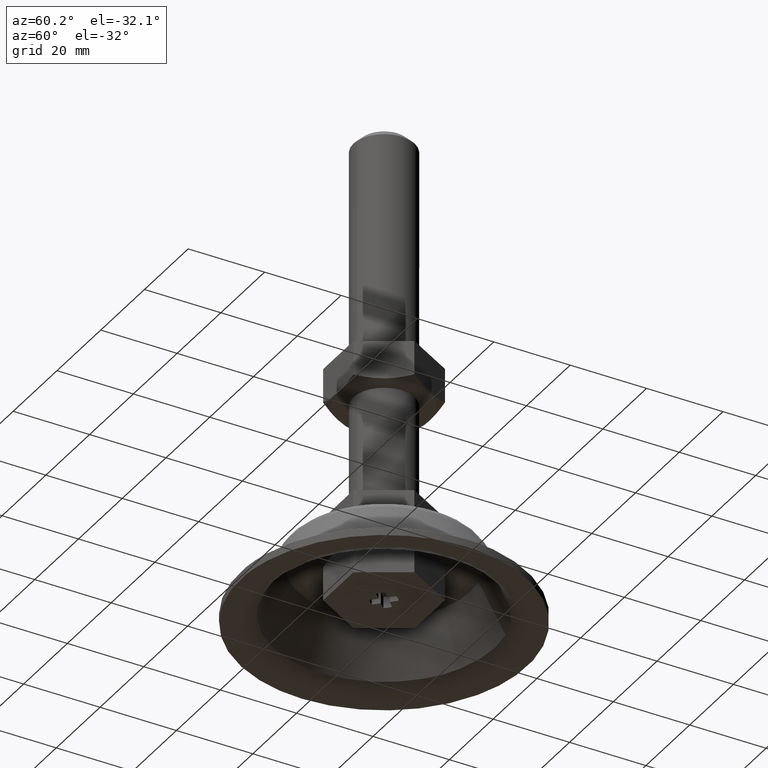
[diagram: clean part render]
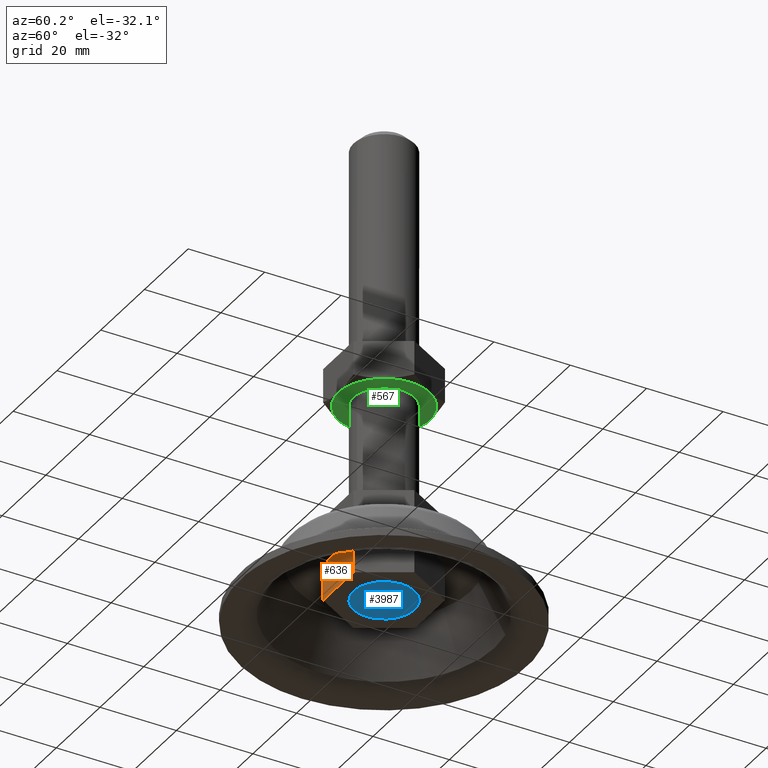
[diagram: same view with three faces highlighted in distinct colors, each labeled with its STEP entity id]
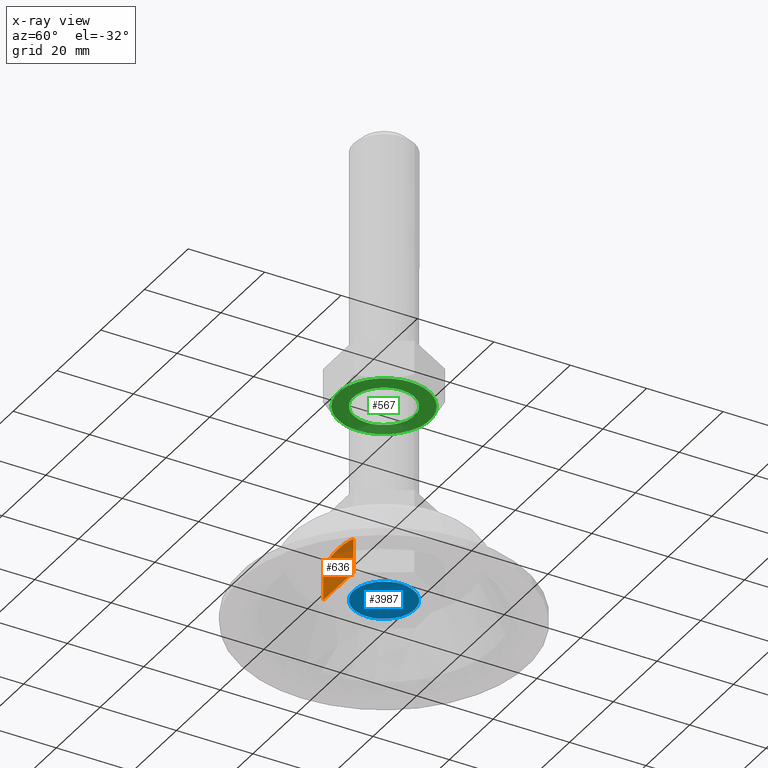
[diagram: x-ray of the same camera — body ghosted, the three highlighted faces saturated]
A machine part, auxiliary view with three faces highlighted in distinct colors.
The next image is the same camera in x-ray (body ghosted, the three faces saturated) — at least one of them is partly hidden behind the body in this view.
Their STEP definitions:

[orange] entity #636 — the highlighted face is a freeform B-spline surface patch.
#120=CARTESIAN_POINT('',(6.921797000000001,-12.0,59.073646796981500));
#121=VERTEX_POINT('',#120);
#141=CARTESIAN_POINT('',(-6.921797000000001,-12.0,59.073646796981500));
#142=VERTEX_POINT('',#141);
#143=CARTESIAN_POINT('',(6.921797000000001,-12.0,59.073646796981500));
#144=CARTESIAN_POINT('',(5.802870978181967,-12.0,58.750864757764639));
#145=CARTESIAN_POINT('',(4.669317161794063,-12.0,58.482083020122992));
#146=CARTESIAN_POINT('',(3.224847049230230,-12.0,58.247728260586769));
#147=CARTESIAN_POINT('',(2.789433234024623,-12.0,58.185073760166730));
#148=CARTESIAN_POINT('',(2.350644054811856,-12.0,58.134879830849343));
#149=CARTESIAN_POINT('',(2.057339841839632,-12.0,58.104289639085167));
#150=CARTESIAN_POINT('',(1.910142876343360,-12.0,58.090418470358287));
#151=CARTESIAN_POINT('',(1.174110774181515,-12.0,58.028651724187952));
#152=CARTESIAN_POINT('',(0.587159239858368,-12.0,58.003758089595408));
#153=CARTESIAN_POINT('',(-0.582947442430050,-12.0,58.003639534272203));
#154=CARTESIAN_POINT('',(-1.166103339210503,-12.0,58.028404816675931));
#155=CARTESIAN_POINT('',(-2.328807218985757,-12.0,58.125138279335559));
#156=CARTESIAN_POINT('',(-2.908357873238046,-12.0,58.197071511113762));
#157=CARTESIAN_POINT('',(-4.064224947717327,-12.0,58.383251962031238));
#158=CARTESIAN_POINT('',(-4.640615515414213,-12.0,58.497475225435529));
#159=CARTESIAN_POINT('',(-5.790343191297275,-12.0,58.762066278652370));
#160=CARTESIAN_POINT('',(-6.358660324427036,-12.0,58.911196017434769));
#161=CARTESIAN_POINT('',(-6.921797000000001,-12.0,59.073646796981500));
#162=B_SPLINE_CURVE_WITH_KNOTS('',3,(#143,#144,#145,#146,#147,#148,#149,#150,#151,#152,#153,#154,#155,#156,#157,#158,#159,#160,#161),.UNSPECIFIED.,.F.,.U.,(4,2,1,2,2,2,2,2,2,4),(0.0,0.250000000000000,0.312500000000000,0.343750000000000,0.375000000000000,0.500000000000000,0.625000000000000,0.750000000000000,0.875000000000000,1.0),.UNSPECIFIED.);
#163=EDGE_CURVE('',#121,#142,#162,.T.);
#508=CARTESIAN_POINT('',(-6.921797000000001,-12.0,68.0));
#509=VERTEX_POINT('',#508);
#515=CARTESIAN_POINT('',(6.921797000000001,-12.0,68.0));
#516=VERTEX_POINT('',#515);
#517=CARTESIAN_POINT('',(-6.921797000000001,-12.0,68.0));
#518=CARTESIAN_POINT('',(6.921797000000001,-12.0,68.0));
#519=QUASI_UNIFORM_CURVE('',1,(#517,#518),.UNSPECIFIED.,.F.,.U.);
#520=EDGE_CURVE('',#509,#516,#519,.T.);
#613=CARTESIAN_POINT('',(6.921797000000001,-12.0,68.0));
#614=CARTESIAN_POINT('',(6.921797000000001,-12.0,59.073646796981500));
#615=QUASI_UNIFORM_CURVE('',1,(#613,#614),.UNSPECIFIED.,.F.,.U.);
#616=EDGE_CURVE('',#516,#121,#615,.T.);
#621=CARTESIAN_POINT('',(-7.613284314055631,-12.0,57.504385070749102));
#622=CARTESIAN_POINT('',(-7.613284314055631,-12.0,68.499315422501724));
#623=CARTESIAN_POINT('',(7.613283818970130,-12.0,57.504385070749102));
#624=CARTESIAN_POINT('',(7.613283818970130,-12.0,68.499315422501724));
#625=B_SPLINE_SURFACE_WITH_KNOTS('',1,1,((#621,#623),(#622,#624)),.UNSPECIFIED.,.F.,.F.,.U.,(2,2),(2,2),(0.0,10.994930351752631),(0.0,15.226568133025760),.UNSPECIFIED.);
#626=ORIENTED_EDGE('',*,*,#163,.F.);
#627=ORIENTED_EDGE('',*,*,#616,.F.);
#628=ORIENTED_EDGE('',*,*,#520,.F.);
#629=CARTESIAN_POINT('',(-6.921797000000001,-12.0,68.0));
#630=CARTESIAN_POINT('',(-6.921797000000001,-12.0,59.073646796981500));
#631=QUASI_UNIFORM_CURVE('',1,(#629,#630),.UNSPECIFIED.,.F.,.U.);
#632=EDGE_CURVE('',#509,#142,#631,.T.);
#633=ORIENTED_EDGE('',*,*,#632,.T.);
#634=EDGE_LOOP('',(#626,#627,#628,#633));
#635=FACE_OUTER_BOUND('',#634,.T.);
#636=ADVANCED_FACE('',(#635),#625,.F.);

[blue] entity #3987 — the highlighted face is a freeform B-spline surface patch.
#2932=CARTESIAN_POINT('',(-8.0,0.0,6.000000000000230));
#2933=VERTEX_POINT('',#2932);
#2934=CARTESIAN_POINT('',(-0.993024016783769,-7.938129710586154,6.000000000000229));
#2935=VERTEX_POINT('',#2934);
#2936=CARTESIAN_POINT('',(-8.0,0.0,6.000000000000230));
#2937=CARTESIAN_POINT('',(-8.0,-7.061588800941599,6.000000000000229));
#2938=CARTESIAN_POINT('',(-0.993024016783769,-7.938129710586154,6.000000000000229));
#2946=(BOUNDED_CURVE()B_SPLINE_CURVE(2,(#2936,#2937,#2938),.UNSPECIFIED.,.F.,.U.)B_SPLINE_CURVE_WITH_KNOTS((3,3),(0.0,0.228526071023132),.UNSPECIFIED.)CURVE()GEOMETRIC_REPRESENTATION_ITEM()RATIONAL_B_SPLINE_CURVE((1.0,0.732265053900973,0.954005430262751))REPRESENTATION_ITEM(''));
#2947=EDGE_CURVE('',#2933,#2935,#2946,.T.);
#2988=CARTESIAN_POINT('',(0.069812284211533,7.999695384511410,6.000000000000231));
#2989=VERTEX_POINT('',#2988);
#2995=CARTESIAN_POINT('',(0.069812284211533,7.999695384511410,6.000000000000231));
#2996=CARTESIAN_POINT('',(0.034906806790167,8.0,6.000000000000230));
#2997=CARTESIAN_POINT('',(0.0,8.0,6.000000000000230));
#2998=CARTESIAN_POINT('',(-8.0,8.0,6.000000000000230));
#2999=CARTESIAN_POINT('',(-8.0,0.0,6.000000000000230));
#3007=(BOUNDED_CURVE()B_SPLINE_CURVE(2,(#2995,#2996,#2997,#2998,#2999),.UNSPECIFIED.,.F.,.U.)B_SPLINE_CURVE_WITH_KNOTS((3,2,3),(0.748460105655125,0.750000000000000,1.0),.UNSPECIFIED.)CURVE()GEOMETRIC_REPRESENTATION_ITEM()RATIONAL_B_SPLINE_CURVE((0.996414028077522,0.998195901554787,1.0,0.707106781186548,1.0))REPRESENTATION_ITEM(''));
#3008=EDGE_CURVE('',#2989,#2933,#3007,.T.);
#3035=CARTESIAN_POINT('',(8.0,0.0,6.000000000000230));
#3036=VERTEX_POINT('',#3035);
#3037=CARTESIAN_POINT('',(-0.993024016783769,-7.938129710586154,6.000000000000230));
#3038=CARTESIAN_POINT('',(-0.498439420414788,-8.0,6.000000000000230));
#3039=CARTESIAN_POINT('',(0.0,-8.0,6.000000000000230));
#3040=CARTESIAN_POINT('',(8.0,-8.0,6.000000000000230));
#3041=CARTESIAN_POINT('',(8.0,0.0,6.000000000000230));
#3049=(BOUNDED_CURVE()B_SPLINE_CURVE(2,(#3037,#3038,#3039,#3040,#3041),.UNSPECIFIED.,.F.,.U.)B_SPLINE_CURVE_WITH_KNOTS((3,2,3),(0.228526071023132,0.250000000000000,0.500000000000000),.UNSPECIFIED.)CURVE()GEOMETRIC_REPRESENTATION_ITEM()RATIONAL_B_SPLINE_CURVE((0.954005430262751,0.974841727285575,1.0,0.707106781186548,1.0))REPRESENTATION_ITEM(''));
#3050=EDGE_CURVE('',#2935,#3036,#3049,.T.);
#3052=CARTESIAN_POINT('',(8.0,0.0,6.000000000000230));
#3053=CARTESIAN_POINT('',(8.0,7.930489684314577,6.000000000000231));
#3054=CARTESIAN_POINT('',(0.069812284211533,7.999695384511410,6.000000000000231));
#3062=(BOUNDED_CURVE()B_SPLINE_CURVE(2,(#3052,#3053,#3054),.UNSPECIFIED.,.F.,.U.)B_SPLINE_CURVE_WITH_KNOTS((3,3),(0.500000000000000,0.748460105655124),.UNSPECIFIED.)CURVE()GEOMETRIC_REPRESENTATION_ITEM()RATIONAL_B_SPLINE_CURVE((1.0,0.708910879631761,0.996414028077520))REPRESENTATION_ITEM(''));
#3063=EDGE_CURVE('',#3036,#2989,#3062,.T.);
#3451=CARTESIAN_POINT('',(-5.421011E-017,-1.507457000000030,6.000000000000201));
#3452=VERTEX_POINT('',#3451);
#3453=CARTESIAN_POINT('',(-0.031022999999990,-1.516942000000030,6.000000000000230));
#3454=VERTEX_POINT('',#3453);
#3455=CARTESIAN_POINT('',(-5.421011E-017,-1.507457000000030,6.000000000000201));
#3456=CARTESIAN_POINT('',(-0.031022999999990,-1.516942000000030,6.000000000000230));
#3457=QUASI_UNIFORM_CURVE('',1,(#3455,#3456),.UNSPECIFIED.,.F.,.U.);
#3458=EDGE_CURVE('',#3452,#3454,#3457,.T.);
#3479=CARTESIAN_POINT('',(0.031023000000019,-1.516942000000030,6.000000000000230));
#3480=VERTEX_POINT('',#3479);
#3481=CARTESIAN_POINT('',(0.031023000000019,-1.516942000000030,6.000000000000230));
#3482=CARTESIAN_POINT('',(-5.421011E-017,-1.507457000000030,6.000000000000201));
#3483=QUASI_UNIFORM_CURVE('',1,(#3481,#3482),.UNSPECIFIED.,.F.,.U.);
#3484=EDGE_CURVE('',#3480,#3452,#3483,.T.);
#3501=CARTESIAN_POINT('',(1.502621612361030,-2.938048381164870,6.000000000000230));
#3502=VERTEX_POINT('',#3501);
#3503=CARTESIAN_POINT('',(1.502621612361030,-2.938048381164870,6.000000000000230));
#3504=CARTESIAN_POINT('',(0.031023000000019,-1.516942000000030,6.000000000000230));
#3505=QUASI_UNIFORM_CURVE('',1,(#3503,#3504),.UNSPECIFIED.,.F.,.U.);
#3506=EDGE_CURVE('',#3502,#3480,#3505,.T.);
#3532=CARTESIAN_POINT('',(2.938048000000000,-1.502622000000000,6.000000000000230));
#3533=VERTEX_POINT('',#3532);
#3534=CARTESIAN_POINT('',(2.938048000000000,-1.502622000000000,6.000000000000230));
#3535=CARTESIAN_POINT('',(2.452332392051403,-2.452332777499696,6.000000000000230));
#3536=CARTESIAN_POINT('',(1.502621612361031,-2.938048381164874,6.000000000000230));
#3544=(BOUNDED_CURVE()B_SPLINE_CURVE(2,(#3534,#3535,#3536),.UNSPECIFIED.,.F.,.U.)CURVE()GEOMETRIC_REPRESENTATION_ITEM()QUASI_UNIFORM_CURVE()RATIONAL_B_SPLINE_CURVE((1.0,0.951523619757787,1.0))REPRESENTATION_ITEM(''));
#3545=EDGE_CURVE('',#3533,#3502,#3544,.T.);
#3562=CARTESIAN_POINT('',(1.516942000000000,-0.031022999999990,6.000000000000230));
#3563=VERTEX_POINT('',#3562);
#3564=CARTESIAN_POINT('',(1.516942000000000,-0.031022999999990,6.000000000000230));
#3565=CARTESIAN_POINT('',(2.938048000000000,-1.502622000000000,6.000000000000230));
#3566=QUASI_UNIFORM_CURVE('',1,(#3564,#3565),.UNSPECIFIED.,.F.,.U.);
#3567=EDGE_CURVE('',#3563,#3533,#3566,.T.);
#3584=CARTESIAN_POINT('',(1.507457000000000,0.0,6.000000000000230));
#3585=VERTEX_POINT('',#3584);
#3586=CARTESIAN_POINT('',(1.507457000000000,0.0,6.000000000000230));
#3587=CARTESIAN_POINT('',(1.516942000000000,-0.031022999999990,6.000000000000230));
#3588=QUASI_UNIFORM_CURVE('',1,(#3586,#3587),.UNSPECIFIED.,.F.,.U.);
#3589=EDGE_CURVE('',#3585,#3563,#3588,.T.);
#3606=CARTESIAN_POINT('',(1.516942000000000,0.031023000000019,6.000000000000230));
#3607=VERTEX_POINT('',#3606);
#3608=CARTESIAN_POINT('',(1.516942000000000,0.031023000000019,6.000000000000230));
#3609=CARTESIAN_POINT('',(1.507457000000000,0.0,6.000000000000230));
#3610=QUASI_UNIFORM_CURVE('',1,(#3608,#3609),.UNSPECIFIED.,.F.,.U.);
#3611=EDGE_CURVE('',#3607,#3585,#3610,.T.);
#3628=CARTESIAN_POINT('',(2.938048381164870,1.502621612361035,6.000000000000230));
#3629=VERTEX_POINT('',#3628);
#3630=CARTESIAN_POINT('',(2.938048381164870,1.502621612361035,6.000000000000230));
#3631=CARTESIAN_POINT('',(1.516942000000000,0.031023000000019,6.000000000000230));
#3632=QUASI_UNIFORM_CURVE('',1,(#3630,#3631),.UNSPECIFIED.,.F.,.U.);
#3633=EDGE_CURVE('',#3629,#3607,#3632,.T.);
#3659=CARTESIAN_POINT('',(1.502622000000000,2.938048000000000,6.000000000000230));
#3660=VERTEX_POINT('',#3659);
#3661=CARTESIAN_POINT('',(1.502622000000000,2.938048000000000,6.000000000000230));
#3662=CARTESIAN_POINT('',(2.452332777499692,2.452332392051405,6.000000000000230));
#3663=CARTESIAN_POINT('',(2.938048381164871,1.502621612361037,6.000000000000230));
#3671=(BOUNDED_CURVE()B_SPLINE_CURVE(2,(#3661,#3662,#3663),.UNSPECIFIED.,.F.,.U.)CURVE()GEOMETRIC_REPRESENTATION_ITEM()QUASI_UNIFORM_CURVE()RATIONAL_B_SPLINE_CURVE((1.0,0.951523619757787,1.0))REPRESENTATION_ITEM(''));
#3672=EDGE_CURVE('',#3660,#3629,#3671,.T.);
#3689=CARTESIAN_POINT('',(0.031023000000019,1.516942000000000,6.000000000000230));
#3690=VERTEX_POINT('',#3689);
#3691=CARTESIAN_POINT('',(0.031023000000019,1.516942000000000,6.000000000000230));
#3692=CARTESIAN_POINT('',(1.502622000000000,2.938048000000000,6.000000000000230));
#3693=QUASI_UNIFORM_CURVE('',1,(#3691,#3692),.UNSPECIFIED.,.F.,.U.);
#3694=EDGE_CURVE('',#3690,#3660,#3693,.T.);
#3711=CARTESIAN_POINT('',(0.0,1.507457000000000,6.000000000000230));
#3712=VERTEX_POINT('',#3711);
#3713=CARTESIAN_POINT('',(0.0,1.507457000000000,6.000000000000230));
#3714=CARTESIAN_POINT('',(0.031023000000019,1.516942000000000,6.000000000000230));
#3715=QUASI_UNIFORM_CURVE('',1,(#3713,#3714),.UNSPECIFIED.,.F.,.U.);
#3716=EDGE_CURVE('',#3712,#3690,#3715,.T.);
#3733=CARTESIAN_POINT('',(-0.031022999999990,1.516942000000000,6.000000000000230));
#3734=VERTEX_POINT('',#3733);
#3735=CARTESIAN_POINT('',(-0.031022999999990,1.516942000000000,6.000000000000230));
#3736=CARTESIAN_POINT('',(0.0,1.507457000000000,6.000000000000230));
#3737=QUASI_UNIFORM_CURVE('',1,(#3735,#3736),.UNSPECIFIED.,.F.,.U.);
#3738=EDGE_CURVE('',#3734,#3712,#3737,.T.);
#3755=CARTESIAN_POINT('',(-1.502621612361035,2.938048381164870,6.000000000000230));
#3756=VERTEX_POINT('',#3755);
#3757=CARTESIAN_POINT('',(-1.502621612361035,2.938048381164870,6.000000000000230));
#3758=CARTESIAN_POINT('',(-0.031022999999990,1.516942000000000,6.000000000000230));
#3759=QUASI_UNIFORM_CURVE('',1,(#3757,#3758),.UNSPECIFIED.,.F.,.U.);
#3760=EDGE_CURVE('',#3756,#3734,#3759,.T.);
#3786=CARTESIAN_POINT('',(-2.938048000000000,1.502621000000000,6.000000000000230));
#3787=VERTEX_POINT('',#3786);
#3788=CARTESIAN_POINT('',(-2.938048000000000,1.502621000000000,6.000000000000230));
#3789=CARTESIAN_POINT('',(-2.452332829796139,2.452332553621589,6.000000000000230));
#3790=CARTESIAN_POINT('',(-1.502621612361037,2.938048381164871,6.000000000000230));
#3798=(BOUNDED_CURVE()B_SPLINE_CURVE(2,(#3788,#3789,#3790),.UNSPECIFIED.,.F.,.U.)CURVE()GEOMETRIC_REPRESENTATION_ITEM()QUASI_UNIFORM_CURVE()RATIONAL_B_SPLINE_CURVE((1.0,0.951523578266854,1.0))REPRESENTATION_ITEM(''));
#3799=EDGE_CURVE('',#3787,#3756,#3798,.T.);
#3816=CARTESIAN_POINT('',(-1.516942000000000,0.031023000000019,6.000000000000230));
#3817=VERTEX_POINT('',#3816);
#3818=CARTESIAN_POINT('',(-1.516942000000000,0.031023000000019,6.000000000000230));
#3819=CARTESIAN_POINT('',(-2.938048000000000,1.502621000000000,6.000000000000230));
#3820=QUASI_UNIFORM_CURVE('',1,(#3818,#3819),.UNSPECIFIED.,.F.,.U.);
#3821=EDGE_CURVE('',#3817,#3787,#3820,.T.);
#3838=CARTESIAN_POINT('',(-1.507457000000000,0.0,6.000000000000230));
#3839=VERTEX_POINT('',#3838);
#3840=CARTESIAN_POINT('',(-1.507457000000000,0.0,6.000000000000230));
#3841=CARTESIAN_POINT('',(-1.516942000000000,0.031023000000019,6.000000000000230));
#3842=QUASI_UNIFORM_CURVE('',1,(#3840,#3841),.UNSPECIFIED.,.F.,.U.);
#3843=EDGE_CURVE('',#3839,#3817,#3842,.T.);
#3860=CARTESIAN_POINT('',(-1.516942000000000,-0.031022999999990,6.000000000000230));
#3861=VERTEX_POINT('',#3860);
#3862=CARTESIAN_POINT('',(-1.516942000000000,-0.031022999999990,6.000000000000230));
#3863=CARTESIAN_POINT('',(-1.507457000000000,0.0,6.000000000000230));
#3864=QUASI_UNIFORM_CURVE('',1,(#3862,#3863),.UNSPECIFIED.,.F.,.U.);
#3865=EDGE_CURVE('',#3861,#3839,#3864,.T.);
#3882=CARTESIAN_POINT('',(-2.938048381164870,-1.502621612361035,6.000000000000230));
#3883=VERTEX_POINT('',#3882);
#3884=CARTESIAN_POINT('',(-2.938048381164870,-1.502621612361035,6.000000000000230));
#3885=CARTESIAN_POINT('',(-1.516942000000000,-0.031022999999990,6.000000000000230));
#3886=QUASI_UNIFORM_CURVE('',1,(#3884,#3885),.UNSPECIFIED.,.F.,.U.);
#3887=EDGE_CURVE('',#3883,#3861,#3886,.T.);
#3913=CARTESIAN_POINT('',(-1.502621612361030,-2.938048381164870,6.000000000000230));
#3914=VERTEX_POINT('',#3913);
#3915=CARTESIAN_POINT('',(-1.502621612361031,-2.938048381164874,6.000000000000230));
#3916=CARTESIAN_POINT('',(-2.452332647072766,-2.452332647072771,6.000000000000230));
#3917=CARTESIAN_POINT('',(-2.938048381164871,-1.502621612361036,6.000000000000230));
#3925=(BOUNDED_CURVE()B_SPLINE_CURVE(2,(#3915,#3916,#3917),.UNSPECIFIED.,.F.,.U.)CURVE()GEOMETRIC_REPRESENTATION_ITEM()QUASI_UNIFORM_CURVE()RATIONAL_B_SPLINE_CURVE((1.0,0.951523595585997,1.0))REPRESENTATION_ITEM(''));
#3926=EDGE_CURVE('',#3914,#3883,#3925,.T.);
#3943=CARTESIAN_POINT('',(-0.031022999999990,-1.516942000000030,6.000000000000230));
#3944=CARTESIAN_POINT('',(-1.502621612361030,-2.938048381164870,6.000000000000230));
#3945=QUASI_UNIFORM_CURVE('',1,(#3943,#3944),.UNSPECIFIED.,.F.,.U.);
#3946=EDGE_CURVE('',#3454,#3914,#3945,.T.);
#3954=CARTESIAN_POINT('',(-8.799199968988896,8.798853926732440,6.000000000000201));
#3955=CARTESIAN_POINT('',(8.799200398142338,8.798853926732440,6.000000000000201));
#3956=CARTESIAN_POINT('',(-8.799199968988896,-8.798636059834859,6.000000000000201));
#3957=CARTESIAN_POINT('',(8.799200398142338,-8.798636059834859,6.000000000000201));
#3958=B_SPLINE_SURFACE_WITH_KNOTS('',1,1,((#3954,#3956),(#3955,#3957)),.UNSPECIFIED.,.F.,.F.,.U.,(2,2),(2,2),(0.0,17.598400367131230),(0.0,17.597489986567300),.UNSPECIFIED.);
#3959=ORIENTED_EDGE('',*,*,#3008,.F.);
#3960=ORIENTED_EDGE('',*,*,#3063,.F.);
#3961=ORIENTED_EDGE('',*,*,#3050,.F.);
#3962=ORIENTED_EDGE('',*,*,#2947,.F.);
#3963=EDGE_LOOP('',(#3959,#3960,#3961,#3962));
#3964=FACE_OUTER_BOUND('',#3963,.T.);
#3965=ORIENTED_EDGE('',*,*,#3926,.F.);
#3966=ORIENTED_EDGE('',*,*,#3946,.F.);
#3967=ORIENTED_EDGE('',*,*,#3458,.F.);
#3968=ORIENTED_EDGE('',*,*,#3484,.F.);
#3969=ORIENTED_EDGE('',*,*,#3506,.F.);
#3970=ORIENTED_EDGE('',*,*,#3545,.F.);
#3971=ORIENTED_EDGE('',*,*,#3567,.F.);
#3972=ORIENTED_EDGE('',*,*,#3589,.F.);
#3973=ORIENTED_EDGE('',*,*,#3611,.F.);
#3974=ORIENTED_EDGE('',*,*,#3633,.F.);
#3975=ORIENTED_EDGE('',*,*,#3672,.F.);
#3976=ORIENTED_EDGE('',*,*,#3694,.F.);
#3977=ORIENTED_EDGE('',*,*,#3716,.F.);
#3978=ORIENTED_EDGE('',*,*,#3738,.F.);
#3979=ORIENTED_EDGE('',*,*,#3760,.F.);
#3980=ORIENTED_EDGE('',*,*,#3799,.F.);
#3981=ORIENTED_EDGE('',*,*,#3821,.F.);
#3982=ORIENTED_EDGE('',*,*,#3843,.F.);
#3983=ORIENTED_EDGE('',*,*,#3865,.F.);
#3984=ORIENTED_EDGE('',*,*,#3887,.F.);
#3985=EDGE_LOOP('',(#3965,#3966,#3967,#3968,#3969,#3970,#3971,#3972,#3973,#3974,#3975,#3976,#3977,#3978,#3979,#3980,#3981,#3982,#3983,#3984));
#3986=FACE_BOUND('',#3985,.T.);
#3987=ADVANCED_FACE('',(#3964,#3986),#3958,.T.);

[green] entity #567 — the highlighted face is a freeform B-spline surface patch.
#62=CARTESIAN_POINT('',(-10.115294292789720,-6.444153173358881,58.000000000002707));
#63=VERTEX_POINT('',#62);
#64=CARTESIAN_POINT('',(11.993593654586739,0.0,58.0));
#65=VERTEX_POINT('',#64);
#66=CARTESIAN_POINT('',(-10.115294292789716,-6.444153173358881,58.000000000002707));
#67=CARTESIAN_POINT('',(-6.579910797955506,-11.993593654586743,57.999999999999993));
#68=CARTESIAN_POINT('',(0.0,-11.993593654586739,58.0));
#69=CARTESIAN_POINT('',(11.993593654586743,-11.993593654586743,58.0));
#70=CARTESIAN_POINT('',(11.993593654586739,0.0,58.0));
#78=(BOUNDED_CURVE()B_SPLINE_CURVE(2,(#66,#67,#68,#69,#70),.UNSPECIFIED.,.F.,.U.)B_SPLINE_CURVE_WITH_KNOTS((3,2,3),(0.091950076716405,0.250000000000000,0.500000000000000),.UNSPECIFIED.)CURVE()GEOMETRIC_REPRESENTATION_ITEM()RATIONAL_B_SPLINE_CURVE((0.863791038909963,0.814832996944995,1.0,0.707106781186548,1.0))REPRESENTATION_ITEM(''));
#79=EDGE_CURVE('',#63,#65,#78,.T.);
#81=CARTESIAN_POINT('',(10.115294292789720,6.444153173358879,58.000000000002700));
#82=VERTEX_POINT('',#81);
#83=CARTESIAN_POINT('',(11.993593654586739,0.0,58.0));
#84=CARTESIAN_POINT('',(11.993593654586743,3.495813755726101,58.000000000000007));
#85=CARTESIAN_POINT('',(10.115294292789716,6.444153173358879,58.000000000002693));
#93=(BOUNDED_CURVE()B_SPLINE_CURVE(2,(#83,#84,#85),.UNSPECIFIED.,.F.,.U.)B_SPLINE_CURVE_WITH_KNOTS((3,3),(0.500000000000000,0.591950076716405),.UNSPECIFIED.)CURVE()GEOMETRIC_REPRESENTATION_ITEM()RATIONAL_B_SPLINE_CURVE((1.0,0.892273784241553,0.863791038909964))REPRESENTATION_ITEM(''));
#94=EDGE_CURVE('',#65,#82,#93,.T.);
#204=CARTESIAN_POINT('',(-11.993593654586739,0.0,58.0));
#205=VERTEX_POINT('',#204);
#206=CARTESIAN_POINT('',(-11.993593654586739,0.0,58.0));
#207=CARTESIAN_POINT('',(-11.993593654586746,-3.495813755726113,58.000000000000007));
#208=CARTESIAN_POINT('',(-10.115294292789716,-6.444153173358881,58.000000000002707));
#216=(BOUNDED_CURVE()B_SPLINE_CURVE(2,(#206,#207,#208),.UNSPECIFIED.,.F.,.U.)B_SPLINE_CURVE_WITH_KNOTS((3,3),(0.0,0.091950076716405),.UNSPECIFIED.)CURVE()GEOMETRIC_REPRESENTATION_ITEM()RATIONAL_B_SPLINE_CURVE((1.0,0.892273784241553,0.863791038909963))REPRESENTATION_ITEM(''));
#217=EDGE_CURVE('',#205,#63,#216,.T.);
#294=CARTESIAN_POINT('',(10.115294292789716,6.444153173358879,58.000000000002700));
#295=CARTESIAN_POINT('',(6.579910797955506,11.993593654586741,57.999999999999993));
#296=CARTESIAN_POINT('',(0.0,11.993593654586739,58.0));
#297=CARTESIAN_POINT('',(-11.993593654586743,11.993593654586743,58.0));
#298=CARTESIAN_POINT('',(-11.993593654586739,0.0,58.0));
#306=(BOUNDED_CURVE()B_SPLINE_CURVE(2,(#294,#295,#296,#297,#298),.UNSPECIFIED.,.F.,.U.)B_SPLINE_CURVE_WITH_KNOTS((3,2,3),(0.591950076716405,0.750000000000000,1.0),.UNSPECIFIED.)CURVE()GEOMETRIC_REPRESENTATION_ITEM()RATIONAL_B_SPLINE_CURVE((0.863791038909963,0.814832996944995,1.0,0.707106781186548,1.0))REPRESENTATION_ITEM(''));
#307=EDGE_CURVE('',#82,#205,#306,.T.);
#347=CARTESIAN_POINT('',(-0.627672766028897,-7.975338669848799,58.0));
#348=VERTEX_POINT('',#347);
#354=CARTESIAN_POINT('',(-8.0,0.0,58.0));
#355=VERTEX_POINT('',#354);
#356=CARTESIAN_POINT('',(-8.0,0.0,58.0));
#357=CARTESIAN_POINT('',(-8.0,-7.395123932882197,58.0));
#358=CARTESIAN_POINT('',(-0.627672766028897,-7.975338669848799,58.0));
#366=(BOUNDED_CURVE()B_SPLINE_CURVE(2,(#356,#357,#358),.UNSPECIFIED.,.F.,.U.)B_SPLINE_CURVE_WITH_KNOTS((3,3),(0.0,0.236331300623905),.UNSPECIFIED.)CURVE()GEOMETRIC_REPRESENTATION_ITEM()RATIONAL_B_SPLINE_CURVE((1.0,0.723120658615579,0.969723356153322))REPRESENTATION_ITEM(''));
#367=EDGE_CURVE('',#355,#348,#366,.T.);
#369=CARTESIAN_POINT('',(0.627672766028898,7.975338669848799,58.0));
#370=VERTEX_POINT('',#369);
#371=CARTESIAN_POINT('',(0.627672766028898,7.975338669848799,58.0));
#372=CARTESIAN_POINT('',(0.314320856268450,8.0,58.000000000000007));
#373=CARTESIAN_POINT('',(0.0,8.0,58.0));
#374=CARTESIAN_POINT('',(-8.0,8.0,58.0));
#375=CARTESIAN_POINT('',(-8.0,0.0,58.0));
#383=(BOUNDED_CURVE()B_SPLINE_CURVE(2,(#371,#372,#373,#374,#375),.UNSPECIFIED.,.F.,.U.)B_SPLINE_CURVE_WITH_KNOTS((3,2,3),(0.736331300623905,0.750000000000000,1.0),.UNSPECIFIED.)CURVE()GEOMETRIC_REPRESENTATION_ITEM()RATIONAL_B_SPLINE_CURVE((0.969723356153322,0.983986122570969,1.0,0.707106781186548,1.0))REPRESENTATION_ITEM(''));
#384=EDGE_CURVE('',#370,#355,#383,.T.);
#460=CARTESIAN_POINT('',(8.0,0.0,58.0));
#461=VERTEX_POINT('',#460);
#462=CARTESIAN_POINT('',(8.0,0.0,58.0));
#463=CARTESIAN_POINT('',(8.0,7.395123932882148,58.000000000000007));
#464=CARTESIAN_POINT('',(0.627672766028898,7.975338669848799,58.000000000000007));
#472=(BOUNDED_CURVE()B_SPLINE_CURVE(2,(#462,#463,#464),.UNSPECIFIED.,.F.,.U.)B_SPLINE_CURVE_WITH_KNOTS((3,3),(0.500000000000000,0.736331300623904),.UNSPECIFIED.)CURVE()GEOMETRIC_REPRESENTATION_ITEM()RATIONAL_B_SPLINE_CURVE((1.0,0.723120658615580,0.969723356153320))REPRESENTATION_ITEM(''));
#473=EDGE_CURVE('',#461,#370,#472,.T.);
#475=CARTESIAN_POINT('',(-0.627672766028897,-7.975338669848799,58.0));
#476=CARTESIAN_POINT('',(-0.314320856268448,-8.0,58.000000000000007));
#477=CARTESIAN_POINT('',(0.0,-8.0,58.0));
#478=CARTESIAN_POINT('',(8.0,-8.0,58.0));
#479=CARTESIAN_POINT('',(8.0,0.0,58.0));
#487=(BOUNDED_CURVE()B_SPLINE_CURVE(2,(#475,#476,#477,#478,#479),.UNSPECIFIED.,.F.,.U.)B_SPLINE_CURVE_WITH_KNOTS((3,2,3),(0.236331300623906,0.250000000000000,0.500000000000000),.UNSPECIFIED.)CURVE()GEOMETRIC_REPRESENTATION_ITEM()RATIONAL_B_SPLINE_CURVE((0.969723356153322,0.983986122570969,1.0,0.707106781186548,1.0))REPRESENTATION_ITEM(''));
#488=EDGE_CURVE('',#348,#461,#487,.T.);
#550=CARTESIAN_POINT('',(-13.191753078139950,13.187233259247209,58.0));
#551=CARTESIAN_POINT('',(13.191752434753450,13.187233259247209,58.0));
#552=CARTESIAN_POINT('',(-13.191753078139950,-13.187232830322870,58.0));
#553=CARTESIAN_POINT('',(13.191752434753450,-13.187232830322870,58.0));
#554=B_SPLINE_SURFACE_WITH_KNOTS('',1,1,((#550,#552),(#551,#553)),.UNSPECIFIED.,.F.,.F.,.U.,(2,2),(2,2),(0.0,26.383505512893390),(0.0,26.374466089570081),.UNSPECIFIED.);
#555=ORIENTED_EDGE('',*,*,#307,.F.);
#556=ORIENTED_EDGE('',*,*,#94,.F.);
#557=ORIENTED_EDGE('',*,*,#79,.F.);
#558=ORIENTED_EDGE('',*,*,#217,.F.);
#559=EDGE_LOOP('',(#555,#556,#557,#558));
#560=FACE_OUTER_BOUND('',#559,.T.);
#561=ORIENTED_EDGE('',*,*,#473,.T.);
#562=ORIENTED_EDGE('',*,*,#384,.T.);
#563=ORIENTED_EDGE('',*,*,#367,.T.);
#564=ORIENTED_EDGE('',*,*,#488,.T.);
#565=EDGE_LOOP('',(#561,#562,#563,#564));
#566=FACE_BOUND('',#565,.T.);
#567=ADVANCED_FACE('',(#560,#566),#554,.T.);